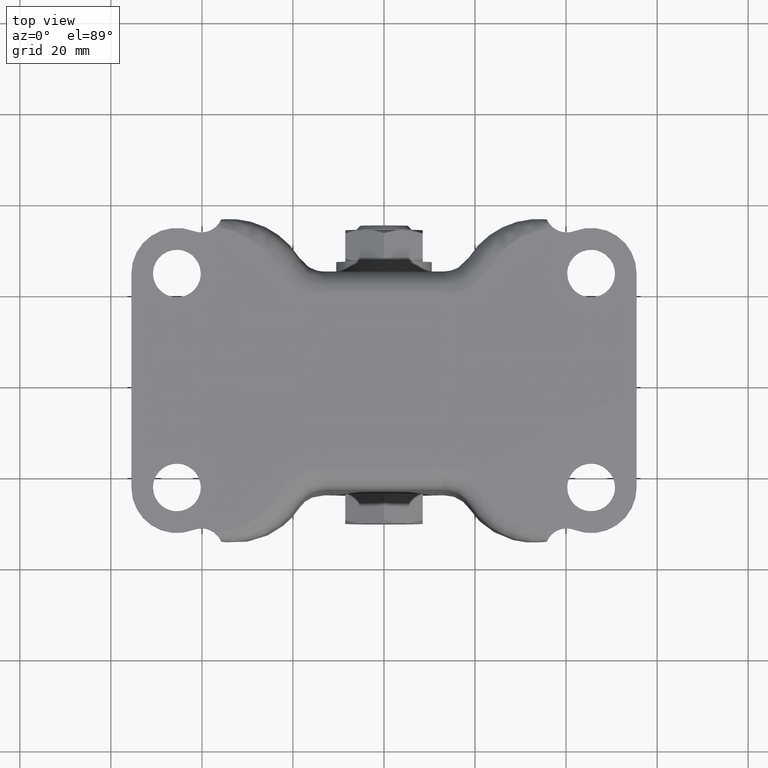
[diagram: clean part render]
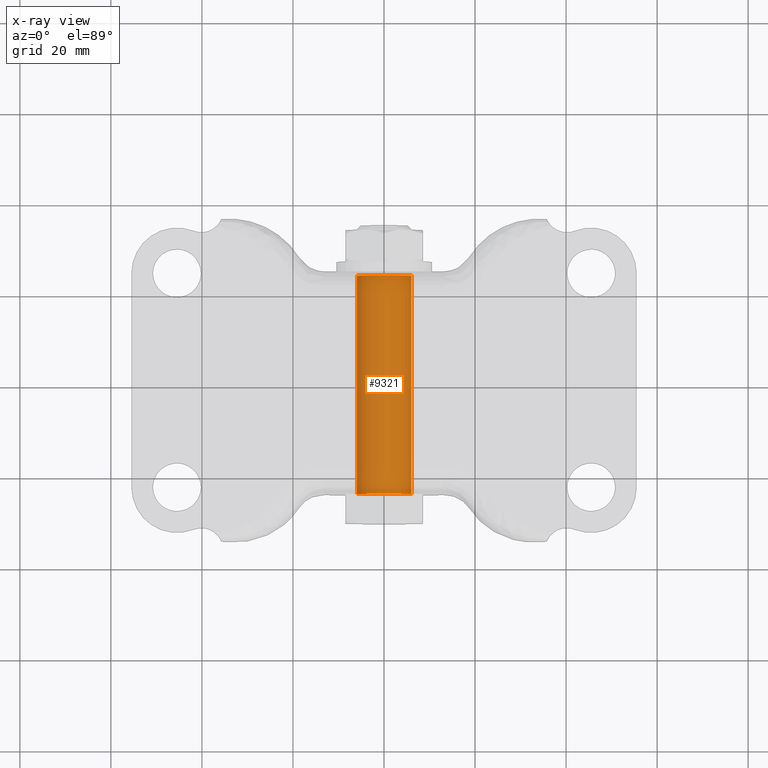
[diagram: x-ray — body ghosted, one internal face saturated and labeled with its STEP entity id]
A machine part, top view, then the same camera in x-ray: the body is ghosted and one INTERNAL B-rep face — a face not visible from any outside direction — is saturated and labeled: STEP entity #9321.
In plain terms, the highlighted face is a freeform B-spline surface patch.
Its self-contained STEP definition (entity closure, byte-faithful):
#9058=CARTESIAN_POINT('',(-4.234835E-012,-24.0,-53.499999999999922));
#9059=VERTEX_POINT('',#9058);
#9060=CARTESIAN_POINT('',(5.988808790514995,-24.0,-59.133708762593642));
#9061=VERTEX_POINT('',#9060);
#9062=CARTESIAN_POINT('',(-4.234835E-012,-24.0,-53.499999999999922));
#9063=CARTESIAN_POINT('',(5.644236401243802,-24.000000000000007,-53.499999999999929));
#9064=CARTESIAN_POINT('',(5.988808790514995,-24.000000000000007,-59.133708762593649));
#9072=(BOUNDED_CURVE()B_SPLINE_CURVE(2,(#9062,#9063,#9064),.UNSPECIFIED.,.F.,.U.)B_SPLINE_CURVE_WITH_KNOTS((3,3),(0.500000000000000,0.739332962236286),.UNSPECIFIED.)CURVE()GEOMETRIC_REPRESENTATION_ITEM()RATIONAL_B_SPLINE_CURVE((1.0,0.719603993289823,0.976072041661024))REPRESENTATION_ITEM(''));
#9073=EDGE_CURVE('',#9059,#9061,#9072,.T.);
#9075=CARTESIAN_POINT('',(-5.988808790523464,-24.0,-59.866291237406358));
#9076=VERTEX_POINT('',#9075);
#9077=CARTESIAN_POINT('',(-5.988808790523466,-24.000000000000004,-59.866291237406351));
#9078=CARTESIAN_POINT('',(-6.000000000004325,-24.0,-59.683316579890423));
#9079=CARTESIAN_POINT('',(-6.000000000004325,-24.0,-59.500000000000000));
#9080=CARTESIAN_POINT('',(-6.000000000004325,-23.999999999999996,-53.499999999999929));
#9081=CARTESIAN_POINT('',(-4.234835E-012,-24.0,-53.499999999999922));
#9089=(BOUNDED_CURVE()B_SPLINE_CURVE(2,(#9077,#9078,#9079,#9080,#9081),.UNSPECIFIED.,.F.,.U.)B_SPLINE_CURVE_WITH_KNOTS((3,2,3),(0.239332962236286,0.250000000000000,0.500000000000000),.UNSPECIFIED.)CURVE()GEOMETRIC_REPRESENTATION_ITEM()RATIONAL_B_SPLINE_CURVE((0.976072041661024,0.987502787896725,1.0,0.707106781186548,1.0))REPRESENTATION_ITEM(''));
#9090=EDGE_CURVE('',#9076,#9059,#9089,.T.);
#9255=CARTESIAN_POINT('',(-5.988808790535525,-25.200000000000010,-59.866291237209147));
#9256=CARTESIAN_POINT('',(-6.355100027744673,-25.200000000000014,-53.877482446677860));
#9257=CARTESIAN_POINT('',(-0.366291237213382,-25.200000000000010,-53.511191209468713));
#9258=CARTESIAN_POINT('',(5.622517553317908,-25.200000000000014,-53.144899972259580));
#9259=CARTESIAN_POINT('',(5.988808790527055,-25.200000000000010,-59.133708762790853));
#9260=CARTESIAN_POINT('',(-5.988808790535525,25.230000000000000,-59.866291237209147));
#9261=CARTESIAN_POINT('',(-6.355100027744673,25.230000000000004,-53.877482446677860));
#9262=CARTESIAN_POINT('',(-0.366291237213382,25.230000000000000,-53.511191209468713));
#9263=CARTESIAN_POINT('',(5.622517553317908,25.230000000000004,-53.144899972259580));
#9264=CARTESIAN_POINT('',(5.988808790527055,25.230000000000000,-59.133708762790853));
#9272=(BOUNDED_SURFACE()B_SPLINE_SURFACE(2,1,((#9255,#9260),(#9256,#9261),(#9257,#9262),(#9258,#9263),(#9259,#9264)),.UNSPECIFIED.,.F.,.F.,.U.)B_SPLINE_SURFACE_WITH_KNOTS((3,2,3),(2,2),(0.0,9.941125496954426,19.882250993908851),(0.0,50.430000000000007),.UNSPECIFIED.)GEOMETRIC_REPRESENTATION_ITEM()RATIONAL_B_SPLINE_SURFACE(((1.0,1.0),(0.707106781186548,0.707106781186548),(1.0,1.0),(0.707106781186548,0.707106781186548),(1.0,1.0)))REPRESENTATION_ITEM('')SURFACE());
#9273=CARTESIAN_POINT('',(-5.988808790523464,24.000000000000011,-59.866291237406358));
#9274=VERTEX_POINT('',#9273);
#9275=CARTESIAN_POINT('',(-4.234835E-012,24.0,-53.499999999999922));
#9276=VERTEX_POINT('',#9275);
#9277=CARTESIAN_POINT('',(-5.988808790523466,24.000000000000004,-59.866291237406351));
#9278=CARTESIAN_POINT('',(-6.000000000004325,24.0,-59.683316579890423));
#9279=CARTESIAN_POINT('',(-6.000000000004325,24.0,-59.500000000000000));
#9280=CARTESIAN_POINT('',(-6.000000000004325,23.999999999999996,-53.499999999999929));
#9281=CARTESIAN_POINT('',(-4.234835E-012,24.0,-53.499999999999922));
#9289=(BOUNDED_CURVE()B_SPLINE_CURVE(2,(#9277,#9278,#9279,#9280,#9281),.UNSPECIFIED.,.F.,.U.)B_SPLINE_CURVE_WITH_KNOTS((3,2,3),(0.239332962236286,0.250000000000000,0.500000000000000),.UNSPECIFIED.)CURVE()GEOMETRIC_REPRESENTATION_ITEM()RATIONAL_B_SPLINE_CURVE((0.976072041661024,0.987502787896725,1.0,0.707106781186548,1.0))REPRESENTATION_ITEM(''));
#9290=EDGE_CURVE('',#9274,#9276,#9289,.T.);
#9291=ORIENTED_EDGE('',*,*,#9290,.F.);
#9292=CARTESIAN_POINT('',(-5.988808790523464,-24.0,-59.866291237406358));
#9293=CARTESIAN_POINT('',(-5.988808790523464,24.000000000000011,-59.866291237406358));
#9294=QUASI_UNIFORM_CURVE('',1,(#9292,#9293),.UNSPECIFIED.,.F.,.U.);
#9295=EDGE_CURVE('',#9076,#9274,#9294,.T.);
#9296=ORIENTED_EDGE('',*,*,#9295,.F.);
#9297=ORIENTED_EDGE('',*,*,#9090,.T.);
#9298=ORIENTED_EDGE('',*,*,#9073,.T.);
#9299=CARTESIAN_POINT('',(5.988808790514995,24.0,-59.133708762593642));
#9300=VERTEX_POINT('',#9299);
#9301=CARTESIAN_POINT('',(5.988808790514995,-24.0,-59.133708762593642));
#9302=CARTESIAN_POINT('',(5.988808790514995,24.0,-59.133708762593642));
#9303=QUASI_UNIFORM_CURVE('',1,(#9301,#9302),.UNSPECIFIED.,.F.,.U.);
#9304=EDGE_CURVE('',#9061,#9300,#9303,.T.);
#9305=ORIENTED_EDGE('',*,*,#9304,.T.);
#9306=CARTESIAN_POINT('',(-4.234835E-012,24.0,-53.499999999999922));
#9307=CARTESIAN_POINT('',(5.644236401243802,24.000000000000007,-53.499999999999929));
#9308=CARTESIAN_POINT('',(5.988808790514995,24.000000000000007,-59.133708762593649));
#9316=(BOUNDED_CURVE()B_SPLINE_CURVE(2,(#9306,#9307,#9308),.UNSPECIFIED.,.F.,.U.)B_SPLINE_CURVE_WITH_KNOTS((3,3),(0.500000000000000,0.739332962236286),.UNSPECIFIED.)CURVE()GEOMETRIC_REPRESENTATION_ITEM()RATIONAL_B_SPLINE_CURVE((1.0,0.719603993289823,0.976072041661024))REPRESENTATION_ITEM(''));
#9317=EDGE_CURVE('',#9276,#9300,#9316,.T.);
#9318=ORIENTED_EDGE('',*,*,#9317,.F.);
#9319=EDGE_LOOP('',(#9291,#9296,#9297,#9298,#9305,#9318));
#9320=FACE_OUTER_BOUND('',#9319,.T.);
#9321=ADVANCED_FACE('',(#9320),#9272,.T.);